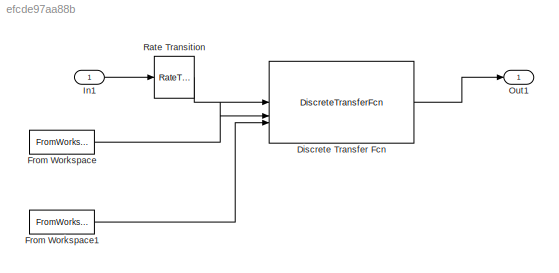
MODEL slx_efcde97aa88b
KIND model
CONFIG AbsTol = auto
CONFIG EnableMultiTasking = off
CONFIG FixedStep = auto
CONFIG MaxStep = auto
CONFIG MinStep = auto
CONFIG RelTol = 1e-3
CONFIG SampleTimeConstraint = Unconstrained
CONFIG SolverName = FixedStepDiscrete
CONFIG StartTime = 0.0
CONFIG StopTime = 10.0
BLOCK [DiscreteTransferFcn] Discrete Transfer Fcn
  Denominator = [1 -1.7828 0.7828]
  DenominatorSource = Input port
  InputPortMap = u0,p1,p3
  Numerator = [433.4046 -866.3778 432.9733]
  NumeratorSource = Input port
  a0EqualsOne = on
BLOCK [FromWorkspace] From Workspace
  SampleTime = -1
  VariableName = [0, cell2mat(Z_Regul.Numerator)]
BLOCK [FromWorkspace] From Workspace1
  SampleTime = -1
  VariableName = [0, cell2mat(Z_Regul.Denominator)]
BLOCK [Inport] In1
BLOCK [Outport] Out1
BLOCK [RateTransition] Rate Transition
  OutPortSampleTime = 1e-4
LINE Discrete Transfer Fcn:1 -> Out1:1
LINE From Workspace1:1 -> Discrete Transfer Fcn:3
LINE From Workspace:1 -> Discrete Transfer Fcn:2
LINE In1:1 -> Rate Transition:1
LINE Rate Transition:1 -> Discrete Transfer Fcn:1
